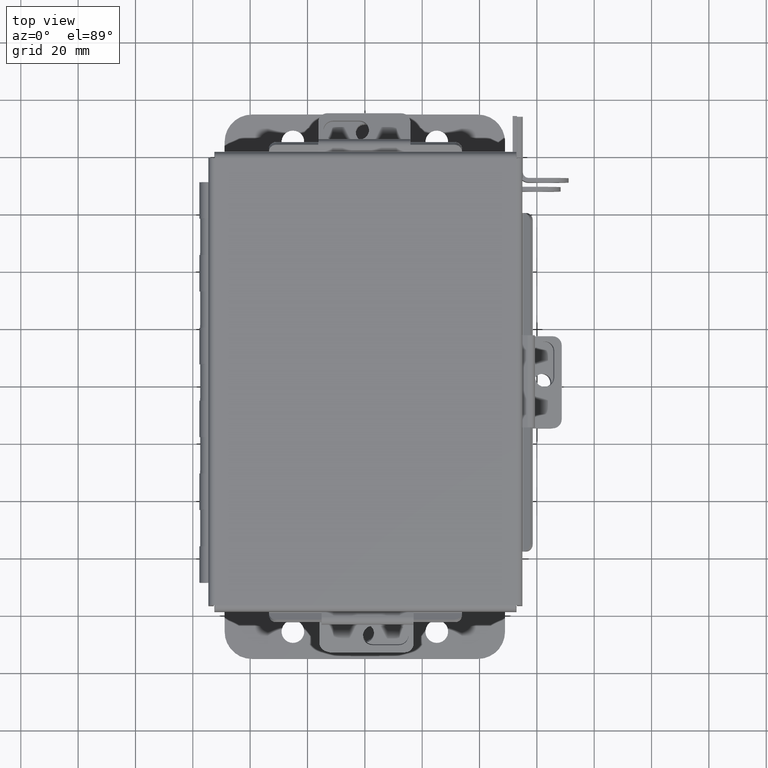
[diagram: clean part render]
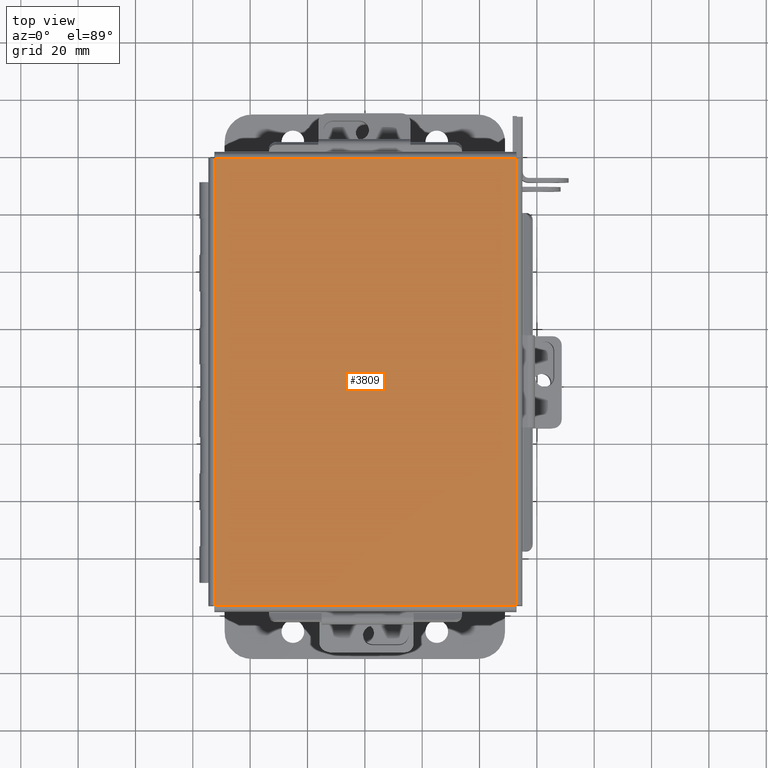
[diagram: same view with one face highlighted and labeled with its STEP entity id]
A machine part, top view. The second image highlights one B-rep face of the part: STEP entity #3809.
In plain terms, the highlighted planar face has unit normal (-0, -0, 1).
Its self-contained STEP definition (entity closure, byte-faithful):
#99 = AXIS2_PLACEMENT_3D ( 'NONE', #10489, #2951, #10538 ) ;
#122 = LINE ( 'NONE', #10570, #8169 ) ;
#324 = EDGE_CURVE ( 'NONE', #1236, #9286, #5461, .T. ) ;
#1236 = VERTEX_POINT ( 'NONE', #3477 ) ;
#2298 = CARTESIAN_POINT ( 'NONE',  ( -2.068550000000001000, -3.068550000000000100, -0.07470000000000022500 ) ) ;
#2385 = EDGE_CURVE ( 'NONE', #6311, #1236, #8954, .T. ) ;
#2571 = VECTOR ( 'NONE', #4794, 39.37007874015748100 ) ;
#2839 = DIRECTION ( 'NONE',  ( -0.0000000000000000000, 1.000000000000000000, -0.0000000000000000000 ) ) ;
#2911 = PLANE ( 'NONE',  #99 ) ;
#2951 = DIRECTION ( 'NONE',  ( 0.0000000000000000000, 0.0000000000000000000, -1.000000000000000000 ) ) ;
#3477 = CARTESIAN_POINT ( 'NONE',  ( -2.068550000000001000, 3.068549999999999700, -0.07469999999999994700 ) ) ;
#3809 = ADVANCED_FACE ( 'NONE', ( #7725 ), #2911, .T. ) ;
#4067 = ORIENTED_EDGE ( 'NONE', *, *, #2385, .T. ) ;
#4794 = DIRECTION ( 'NONE',  ( 1.000000000000000000, 0.0000000000000000000, 0.0000000000000000000 ) ) ;
#5287 = ORIENTED_EDGE ( 'NONE', *, *, #9722, .T. ) ;
#5413 = VERTEX_POINT ( 'NONE', #11279 ) ;
#5461 = LINE ( 'NONE', #5880, #2571 ) ;
#5880 = CARTESIAN_POINT ( 'NONE',  ( -2.074478932188136100, 3.068549999999999700, -0.07469999999999994700 ) ) ;
#6311 = VERTEX_POINT ( 'NONE', #2298 ) ;
#6438 = VECTOR ( 'NONE', #2839, 39.37007874015748100 ) ;
#7216 = ORIENTED_EDGE ( 'NONE', *, *, #13929, .T. ) ;
#7725 = FACE_OUTER_BOUND ( 'NONE', #11720, .T. ) ;
#8169 = VECTOR ( 'NONE', #11654, 39.37007874015748100 ) ;
#8242 = CARTESIAN_POINT ( 'NONE',  ( -2.068550000000001000, -3.074478932188135200, -0.07470000000000022500 ) ) ;
#8727 = CARTESIAN_POINT ( 'NONE',  ( 2.068549999999999700, 3.068550000000000100, -0.07470000000000059900 ) ) ;
#8954 = LINE ( 'NONE', #8242, #6438 ) ;
#9286 = VERTEX_POINT ( 'NONE', #8727 ) ;
#9722 = EDGE_CURVE ( 'NONE', #9286, #5413, #122, .T. ) ;
#9906 = LINE ( 'NONE', #11229, #12782 ) ;
#10489 = CARTESIAN_POINT ( 'NONE',  ( 0.0000000000000000000, 0.0000000000000000000, -0.07470000000000000300 ) ) ;
#10538 = DIRECTION ( 'NONE',  ( -1.000000000000000000, 0.0000000000000000000, -0.0000000000000000000 ) ) ;
#10570 = CARTESIAN_POINT ( 'NONE',  ( 2.068549999999999700, 3.074478932188135200, -0.07470000000000059900 ) ) ;
#11182 = DIRECTION ( 'NONE',  ( -1.000000000000000000, 0.0000000000000000000, 0.0000000000000000000 ) ) ;
#11229 = CARTESIAN_POINT ( 'NONE',  ( 2.074478932188134700, -3.068549999999999700, -0.07469999999999994700 ) ) ;
#11279 = CARTESIAN_POINT ( 'NONE',  ( 2.068549999999999700, -3.068549999999999700, -0.07469999999999994700 ) ) ;
#11654 = DIRECTION ( 'NONE',  ( -0.0000000000000000000, -1.000000000000000000, 8.208677865577646300E-017 ) ) ;
#11720 = EDGE_LOOP ( 'NONE', ( #13670, #5287, #7216, #4067 ) ) ;
#12782 = VECTOR ( 'NONE', #11182, 39.37007874015748100 ) ;
#13670 = ORIENTED_EDGE ( 'NONE', *, *, #324, .T. ) ;
#13929 = EDGE_CURVE ( 'NONE', #5413, #6311, #9906, .T. ) ;